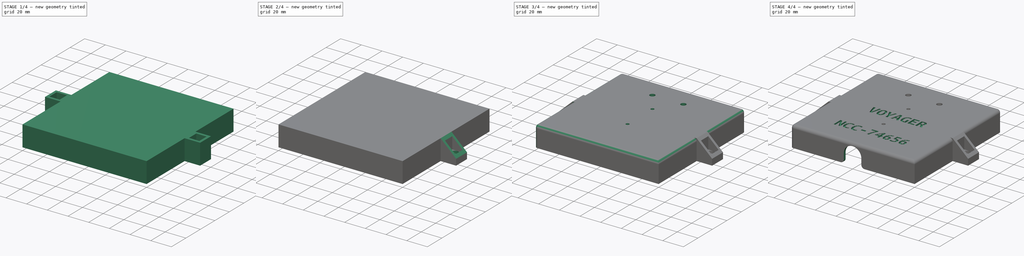
[diagram: build sequence overview — one tinted view per stage of 4, left to right]
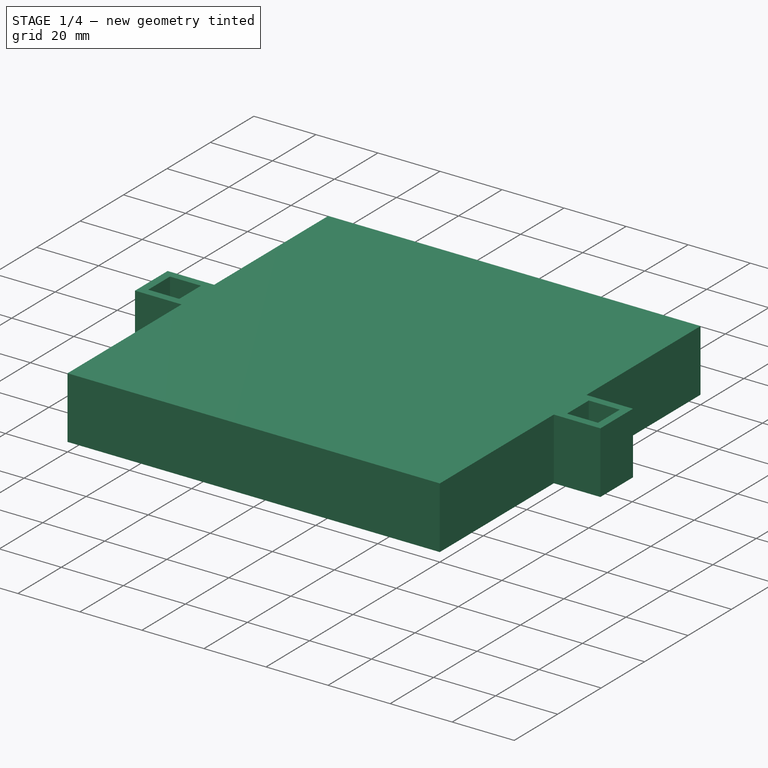
[diagram: stage 1 of 4 — iso view after this stage's code; geometry added in this stage tinted green]
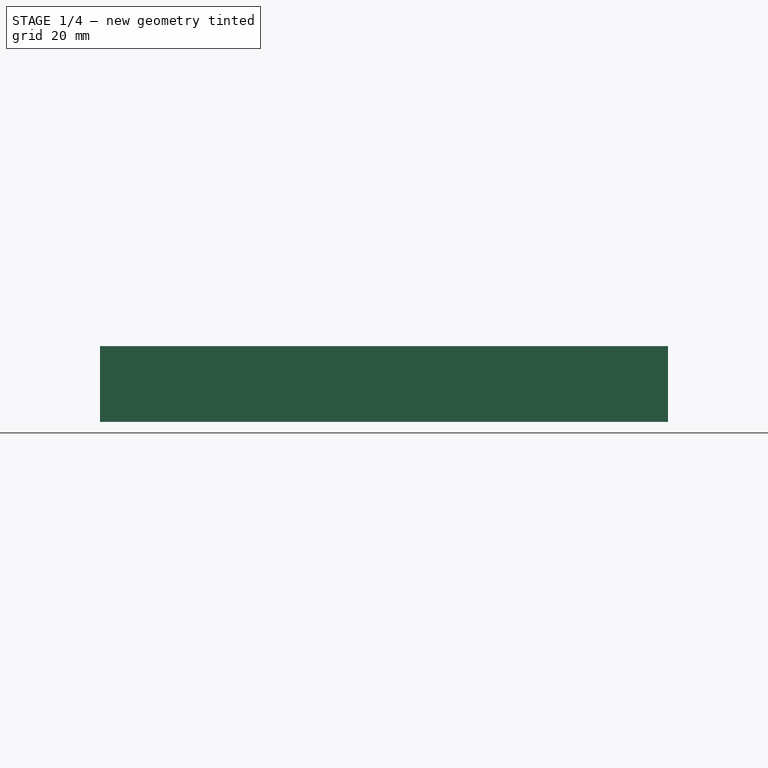
[diagram: stage 1 of 4 — front view after this stage's code; geometry added in this stage tinted green]
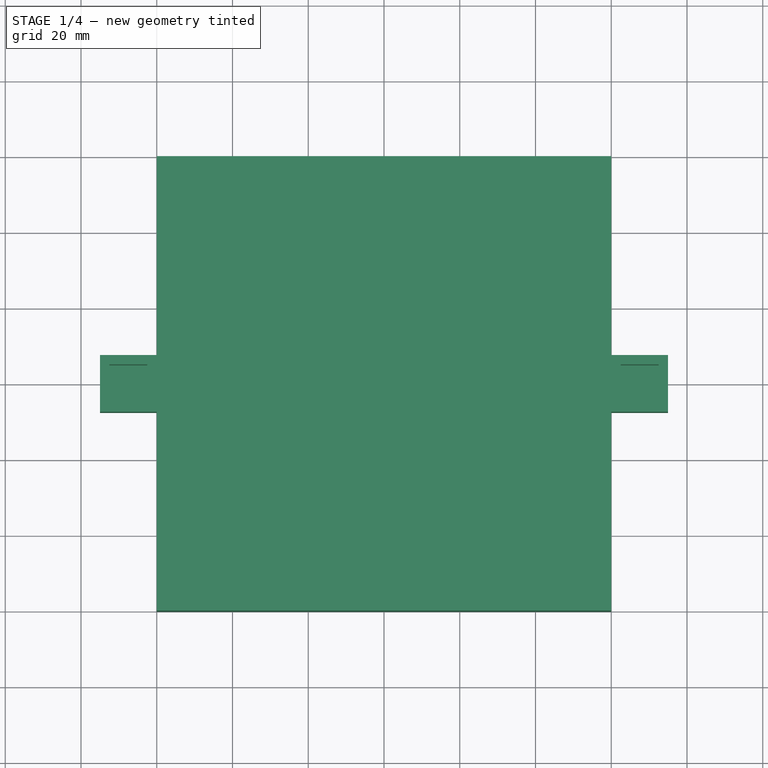
[diagram: stage 1 of 4 — top view after this stage's code; geometry added in this stage tinted green]
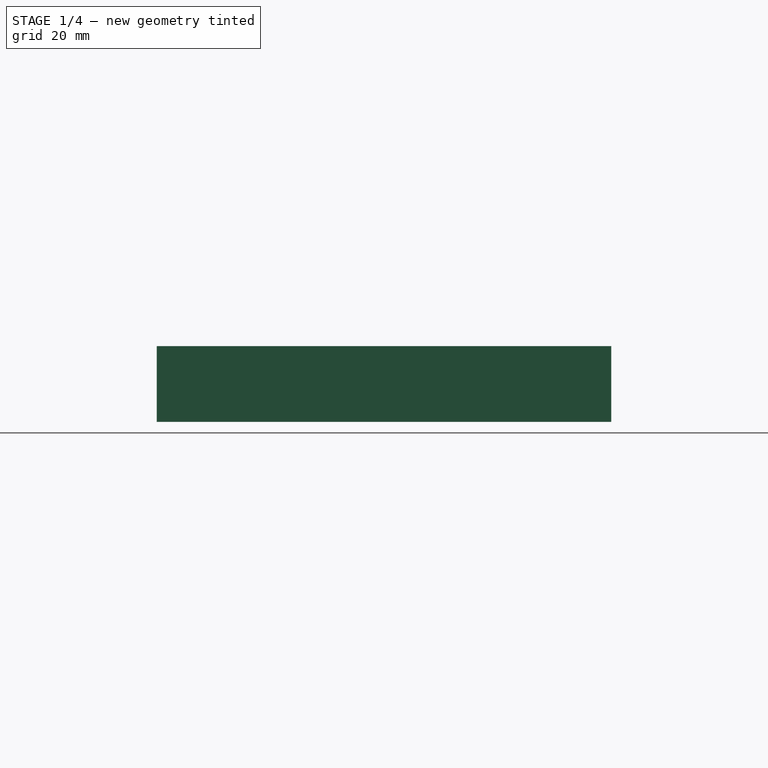
[diagram: stage 1 of 4 — right view after this stage's code; geometry added in this stage tinted green]
FCSTD DOCUMENT  (FreeCAD 0.21R33771 (Git))
Label: caixa-120-120-20
License: All rights reserved
LicenseURL: https://en.wikipedia.org/wiki/All_rights_reserved
objects: Sketcher::SketchObject×10, PartDesign::Pocket×9, PartDesign::Pad×3, PartDesign::Fillet×2, Part::Part2DObjectPython×2, PartDesign::Line×1, PartDesign::Body×1
note: 42 computed .brp shape members not serialized (recipe doc carries the construction recipe); baked Part::Feature solids carry a one-line shape summary decoded from their .brp

FEATURE [Sketcher::SketchObject] Sketch
  FullyConstrained = true
  MapMode = 5
  Support = -> [XY_Plane]
  sketch-geometry (4):
    g0: LineSegment StartX=-60 StartY=60 StartZ=0 EndX=60 EndY=60 EndZ=0
    g1: LineSegment StartX=60 StartY=60 StartZ=0 EndX=60 EndY=-60 EndZ=0
    g2: LineSegment StartX=60 StartY=-60 StartZ=0 EndX=-60 EndY=-60 EndZ=0
    g3: LineSegment StartX=-60 StartY=-60 StartZ=0 EndX=-60 EndY=60 EndZ=0
  constraints (10):
    c: Coincident(g0,g1)
    c: Coincident(g1,g2)
    c: Coincident(g2,g3)
    c: Coincident(g3,g0)
    c: Horizontal(g2)
    c: Vertical(g1)
    c: Symmetric(g0,g0,g-2)
    c: Symmetric(g2,g0,g-1)
    c: DistanceY(g1,g1) = 120
    c: DistanceX(g0,g0) = 120
FEATURE [PartDesign::Pad] Pad
  Direction = (0,0,1)
  Length = 20
  Length2 = 10
  Profile = -> Sketch
  ReferenceAxis = -> Sketch [N_Axis]
  Type = 0
FEATURE [Sketcher::SketchObject] Sketch001
  ExternalGeometry = -> [Pad]
  FullyConstrained = true
  MapMode = 5
  Placement = pos=(0,0,0) rot=(1,0,0;3.14159rad)
  Support = -> [Pad]
  sketch-geometry (4):
    g0: LineSegment StartX=-57.5 StartY=57.5 StartZ=0 EndX=57.5 EndY=57.5 EndZ=0
    g1: LineSegment StartX=57.5 StartY=57.5 StartZ=0 EndX=57.5 EndY=-57.5 EndZ=0
    g2: LineSegment StartX=57.5 StartY=-57.5 StartZ=0 EndX=-57.5 EndY=-57.5 EndZ=0
    g3: LineSegment StartX=-57.5 StartY=-57.5 StartZ=0 EndX=-57.5 EndY=57.5 EndZ=0
  constraints (10):
    c: Coincident(g0,g1)
    c: Coincident(g1,g2)
    c: Coincident(g2,g3)
    c: Coincident(g3,g0)
    c: Horizontal(g2)
    c: Vertical(g1)
    c: Symmetric(g0,g0,g-2)
    c: Symmetric(g2,g0,g-1)
    c: DistanceY(g0,g-4) = 2.5
    c: DistanceX(g-4,g2) = 2.5
FEATURE [PartDesign::Pocket] Pocket
  BaseFeature = -> Pad
  Direction = (0,0,1)
  Length = 17
  Length2 = 5
  Profile = -> Sketch001
  ReferenceAxis = -> Sketch001 [N_Axis]
  Type = 0
FEATURE [Sketcher::SketchObject] Sketch002
  ExternalGeometry = -> [Pocket]
  FullyConstrained = true
  MapMode = 5
  Placement = pos=(0,0,20) rot=(0,0,1;0rad)
  Support = -> [Pocket]
  sketch-geometry (22):
    g0: LineSegment StartX=-75 StartY=7.5 StartZ=0 EndX=-60 EndY=7.5 EndZ=0
    g1: LineSegment StartX=-60 StartY=7.5 StartZ=0 EndX=-60 EndY=-7.5 EndZ=0
    g2: LineSegment StartX=-60 StartY=-7.5 StartZ=0 EndX=-75 EndY=-7.5 EndZ=0
    g3: LineSegment StartX=-75 StartY=-7.5 StartZ=0 EndX=-75 EndY=7.5 EndZ=0
    g4: LineSegment StartX=60 StartY=7.5 StartZ=0 EndX=75 EndY=7.5 EndZ=0
    g5: LineSegment StartX=75 StartY=7.5 StartZ=0 EndX=75 EndY=-7.5 EndZ=0
    g6: LineSegment StartX=75 StartY=-7.5 StartZ=0 EndX=60 EndY=-7.5 EndZ=0
    g7: LineSegment StartX=60 StartY=-7.5 StartZ=0 EndX=60 EndY=7.5 EndZ=0
    g8: Circle CenterX=-67.5 CenterY=0 CenterZ=0 NormalX=0 NormalY=0 NormalZ=1 AngleXU=0 Radius=7.5
    g9: Circle CenterX=-67.5 CenterY=0 CenterZ=0 NormalX=0 NormalY=0 NormalZ=1 AngleXU=0 Radius=5
    g10: GeomPoint X=-75 Y=0 Z=0
    g11: GeomPoint X=-72.5 Y=0 Z=0
    g12: LineSegment StartX=-72.5 StartY=5 StartZ=0 EndX=-62.5 EndY=5 EndZ=0
    g13: LineSegment StartX=-62.5 StartY=5 StartZ=0 EndX=-62.5 EndY=-5 EndZ=0
    g14: LineSegment StartX=-62.5 StartY=-5 StartZ=0 EndX=-72.5 EndY=-5 EndZ=0
    g15: LineSegment StartX=-72.5 StartY=-5 StartZ=0 EndX=-72.5 EndY=5 EndZ=0
    g16: LineSegment StartX=62.5 StartY=5 StartZ=0 EndX=72.5 EndY=5 EndZ=0
    g17: LineSegment StartX=72.5 StartY=5 StartZ=0 EndX=72.5 EndY=-5 EndZ=0
    g18: LineSegment StartX=72.5 StartY=-5 StartZ=0 EndX=62.5 EndY=-5 EndZ=0
    g19: LineSegment StartX=62.5 StartY=-5 StartZ=0 EndX=62.5 EndY=5 EndZ=0
    g20: Circle CenterX=67.5 CenterY=0 CenterZ=0 NormalX=0 NormalY=0 NormalZ=1 AngleXU=0 Radius=5
    g21: Circle CenterX=67.5 CenterY=0 CenterZ=0 NormalX=0 NormalY=0 NormalZ=1 AngleXU=0 Radius=7.5
  constraints (60):
    c: Coincident(g0,g1)
    c: Coincident(g1,g2)
    c: Coincident(g2,g3)
    c: Coincident(g3,g0)
    c: Horizontal(g0)
    c: Horizontal(g2)
    c: Vertical(g3)
    c: Coincident(g4,g5)
    c: Coincident(g5,g6)
    c: Coincident(g6,g7)
    c: Coincident(g7,g4)
    c: Horizontal(g4)
    c: Horizontal(g6)
    c: Vertical(g5)
    c: Symmetric(g4,g6,g-1)
    c: Symmetric(g1,g0,g-1)
    c: Equal(g4,g0)
    c: Equal(g3,g7)
    c: PointOnObject(g0,g-3)
    c: PointOnObject(g8,g-1)
    c: Coincident(g9,g8)
    c: Tangent(g8,g0)
    c: Tangent(g8,g3)
    c: Tangent(g8,g1)
    c: Diameter(g9) = 10
    c: PointOnObject(g11,g9)
    c: PointOnObject(g11,g-1)
    c: PointOnObject(g10,g3)
    c: PointOnObject(g10,g-1)
    c: DistanceX(g10,g11) = 2.5
    c: PointOnObject(g4,g-4)
    c: Coincident(g12,g13)
    c: Coincident(g13,g14)
    c: Coincident(g14,g15)
    c: Coincident(g15,g12)
    c: Horizontal(g12)
    c: Horizontal(g14)
    c: Vertical(g13)
    c: Vertical(g15)
    c: Tangent(g14,g9)
    c: Tangent(g9,g13)
    c: Tangent(g9,g12)
    c: Tangent(g9,g15)
    c: Coincident(g16,g17)
    c: Coincident(g17,g18)
    c: Coincident(g18,g19)
    c: Coincident(g19,g16)
    c: Horizontal(g16)
    c: Horizontal(g18)
    c: Vertical(g17)
    c: Vertical(g19)
    c: PointOnObject(g20,g-1)
    c: Equal(g20,g9)
    c: Coincident(g21,g20)
    c: Tangent(g20,g16)
    c: Tangent(g20,g19)
    c: Tangent(g18,g20)
    c: Tangent(g17,g20)
    c: Tangent(g21,g7)
    c: Equal(g8,g21)
FEATURE [PartDesign::Pad] Pad001
  BaseFeature = -> Pocket
  Direction = (0,0,1)
  Length = 10
  Length2 = 10
  Profile = -> Sketch002
  ReferenceAxis = -> Sketch002 [N_Axis]
  Type = 3
  UpToFace = -> Pocket [Face4]
FEATURE [Sketcher::SketchObject] Sketch003
  ExternalGeometry = -> [Pad001]
  FullyConstrained = true
  MapMode = 5
  Placement = pos=(0,0,0) rot=(1,0,0;3.14159rad)
  Support = -> [Pad001]
  sketch-geometry (8):
    g0: LineSegment StartX=-75 StartY=7.5 StartZ=0 EndX=-60 EndY=7.5 EndZ=0
    g1: LineSegment StartX=-60 StartY=7.5 StartZ=0 EndX=-60 EndY=-7.5 EndZ=0
    g2: LineSegment StartX=-60 StartY=-7.5 StartZ=0 EndX=-75 EndY=-7.5 EndZ=0
    g3: LineSegment StartX=-75 StartY=-7.5 StartZ=0 EndX=-75 EndY=7.5 EndZ=0
    g4: LineSegment StartX=60 StartY=7.5 StartZ=0 EndX=75 EndY=7.5 EndZ=0
    g5: LineSegment StartX=75 StartY=7.5 StartZ=0 EndX=75 EndY=-7.5 EndZ=0
    g6: LineSegment StartX=75 StartY=-7.5 StartZ=0 EndX=60 EndY=-7.5 EndZ=0
    g7: LineSegment StartX=60 StartY=-7.5 StartZ=0 EndX=60 EndY=7.5 EndZ=0
  constraints (20):
    c: Coincident(g0,g1)
    c: Coincident(g1,g2)
    c: Coincident(g2,g3)
    c: Coincident(g3,g0)
    c: Horizontal(g0)
    c: Horizontal(g2)
    c: Vertical(g1)
    c: Vertical(g3)
    c: Coincident(g0,g-3)
    c: Coincident(g1,g-4)
    c: Coincident(g4,g5)
    c: Coincident(g5,g6)
    c: Coincident(g6,g7)
    c: Coincident(g7,g4)
    c: Horizontal(g4)
    c: Horizontal(g6)
    c: Vertical(g5)
    c: Vertical(g7)
    c: Coincident(g4,g-5)
    c: Coincident(g5,g-6)
FEATURE [PartDesign::Pad] Pad002
  BaseFeature = -> Pad001
  Direction = (0,0,-1)
  Length = 6
  Length2 = 10
  Profile = -> Sketch003
  ReferenceAxis = -> Sketch003 [N_Axis]
  Reversed = true
  Type = 0
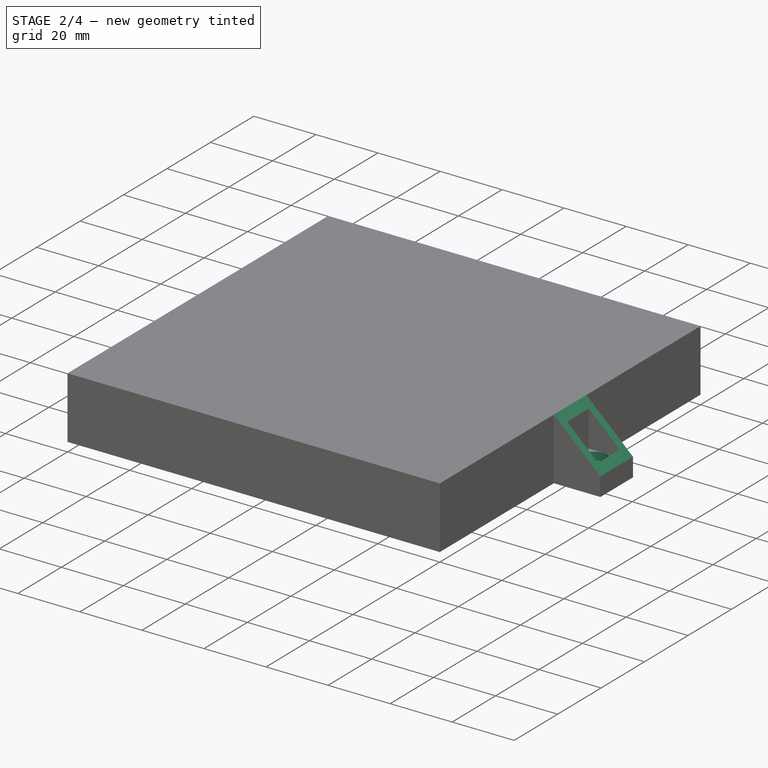
[diagram: stage 2 of 4 — iso view after this stage's code; geometry added in this stage tinted green]
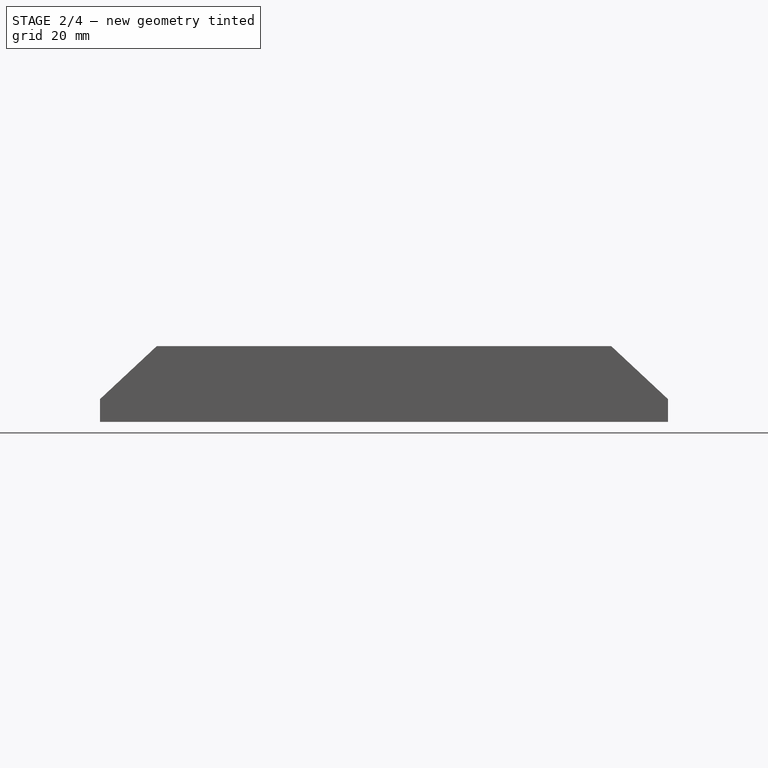
[diagram: stage 2 of 4 — front view after this stage's code; geometry added in this stage tinted green]
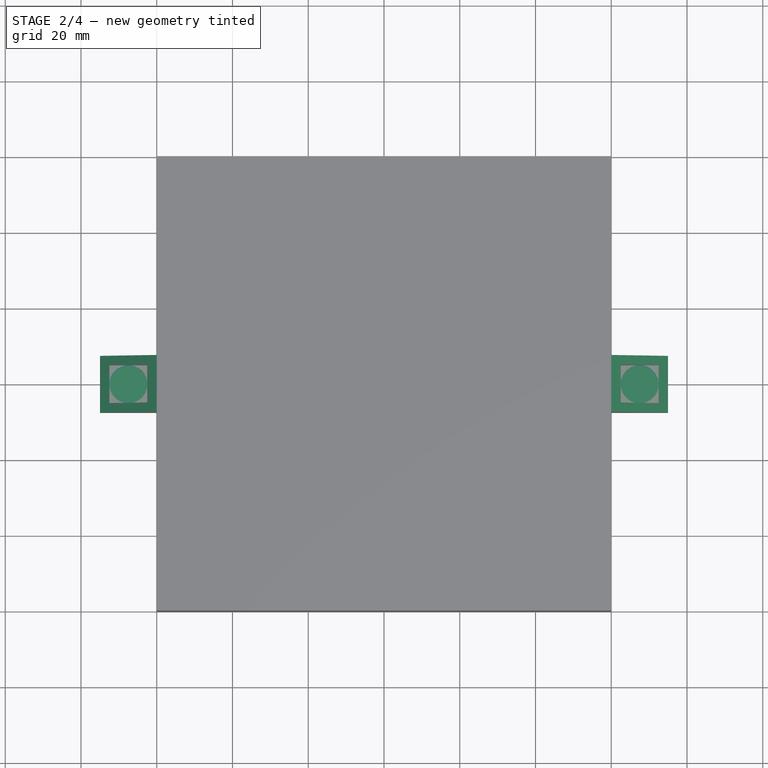
[diagram: stage 2 of 4 — top view after this stage's code; geometry added in this stage tinted green]
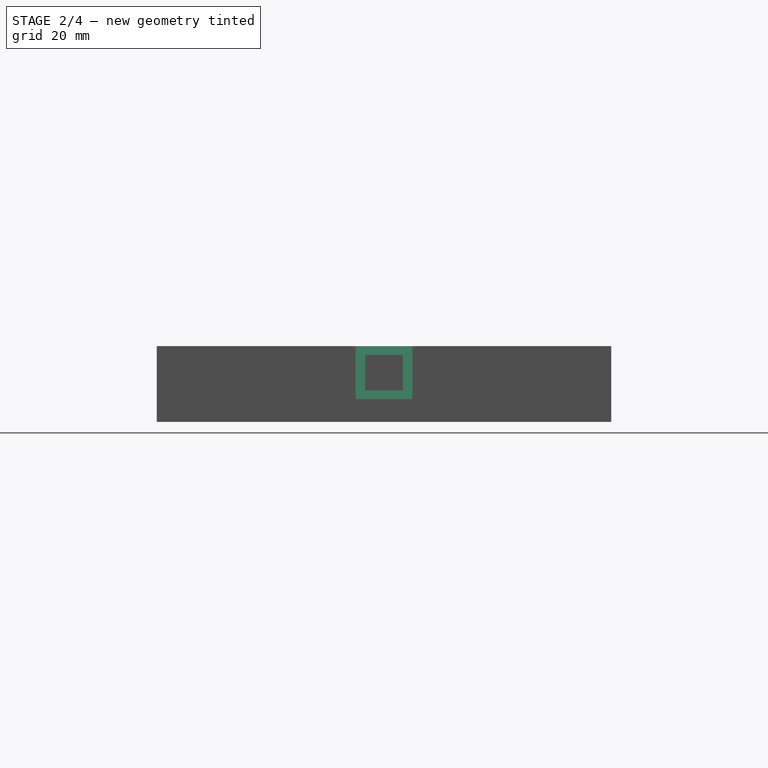
[diagram: stage 2 of 4 — right view after this stage's code; geometry added in this stage tinted green]
FEATURE [Sketcher::SketchObject] Sketch004
  ExternalGeometry = -> [Pad002]
  FullyConstrained = true
  MapMode = 5
  Placement = pos=(0,60,0) rot=(0,0.707107,0.707107;3.14159rad)
  Support = -> [Pad002]
  sketch-geometry (6):
    g0: LineSegment StartX=-75 StartY=6 StartZ=0 EndX=-60 EndY=20 EndZ=0
    g1: LineSegment StartX=-60 StartY=20 StartZ=0 EndX=-75 EndY=20 EndZ=0
    g2: LineSegment StartX=-75 StartY=20 StartZ=0 EndX=-75 EndY=6 EndZ=0
    g3: LineSegment StartX=75 StartY=20 StartZ=0 EndX=60 EndY=20 EndZ=0
    g4: LineSegment StartX=60 StartY=20 StartZ=0 EndX=75 EndY=6 EndZ=0
    g5: LineSegment StartX=75 StartY=6 StartZ=0 EndX=75 EndY=20 EndZ=0
  constraints (12):
    c: Coincident(g0,g1)
    c: Coincident(g1,g2)
    c: Coincident(g2,g0)
    c: Coincident(g3,g4)
    c: Coincident(g4,g5)
    c: Coincident(g5,g3)
    c: Coincident(g-6,g3)
    c: Coincident(g3,g-5)
    c: Coincident(g4,g-6)
    c: Coincident(g1,g-4)
    c: Coincident(g0,g-3)
    c: Coincident(g0,g-4)
FEATURE [PartDesign::Pocket] Pocket001
  BaseFeature = -> Pad002
  Direction = (0,-1,2e-16)
  Length = 5
  Length2 = 5
  Profile = -> Sketch004
  ReferenceAxis = -> Sketch004 [N_Axis]
  Type = 1
FEATURE [Sketcher::SketchObject] Sketch005
  ExternalGeometry = -> [Pocket001]
  FullyConstrained = true
  MapMode = 5
  Placement = pos=(0,0,0) rot=(1,0,0;3.14159rad)
  Support = -> [Pocket001]
  sketch-geometry (2):
    g0: Circle CenterX=67.5 CenterY=0 CenterZ=0 NormalX=0 NormalY=0 NormalZ=1 AngleXU=0 Radius=5
    g1: Circle CenterX=-67.5 CenterY=0 CenterZ=0 NormalX=0 NormalY=0 NormalZ=1 AngleXU=0 Radius=5
  constraints (6):
    c: PointOnObject(g0,g-1)
    c: PointOnObject(g1,g-1)
    c: Tangent(g1,g-4)
    c: Tangent(g1,g-3)
    c: Tangent(g0,g-5)
    c: Tangent(g-6,g0)
FEATURE [PartDesign::Pocket] Pocket002
  BaseFeature = -> Pocket001
  Direction = (0,0,1)
  Length = 2.5
  Length2 = 5
  Profile = -> Sketch005
  ReferenceAxis = -> Sketch005 [N_Axis]
  Type = 0
FEATURE [Sketcher::SketchObject] Sketch006
  ExternalGeometry = -> [Pocket002]
  FullyConstrained = true
  MapMode = 5
  Placement = pos=(0,0,6) rot=(0,0,1;0rad)
  Support = -> [Pocket002]
  sketch-geometry (2):
    g0: Circle CenterX=-67.5 CenterY=0 CenterZ=0 NormalX=0 NormalY=0 NormalZ=1 AngleXU=0 Radius=5
    g1: Circle CenterX=67.5 CenterY=0 CenterZ=0 NormalX=0 NormalY=0 NormalZ=1 AngleXU=0 Radius=5
  constraints (6):
    c: PointOnObject(g0,g-1)
    c: PointOnObject(g1,g-1)
    c: Tangent(g1,g-6)
    c: Tangent(g1,g-5)
    c: Tangent(g0,g-4)
    c: Tangent(g0,g-3)
FEATURE [PartDesign::Pocket] Pocket003
  BaseFeature = -> Pocket002
  Direction = (0,0,-1)
  Length = 2.5
  Length2 = 5
  Profile = -> Sketch006
  ReferenceAxis = -> Sketch006 [N_Axis]
  Type = 0
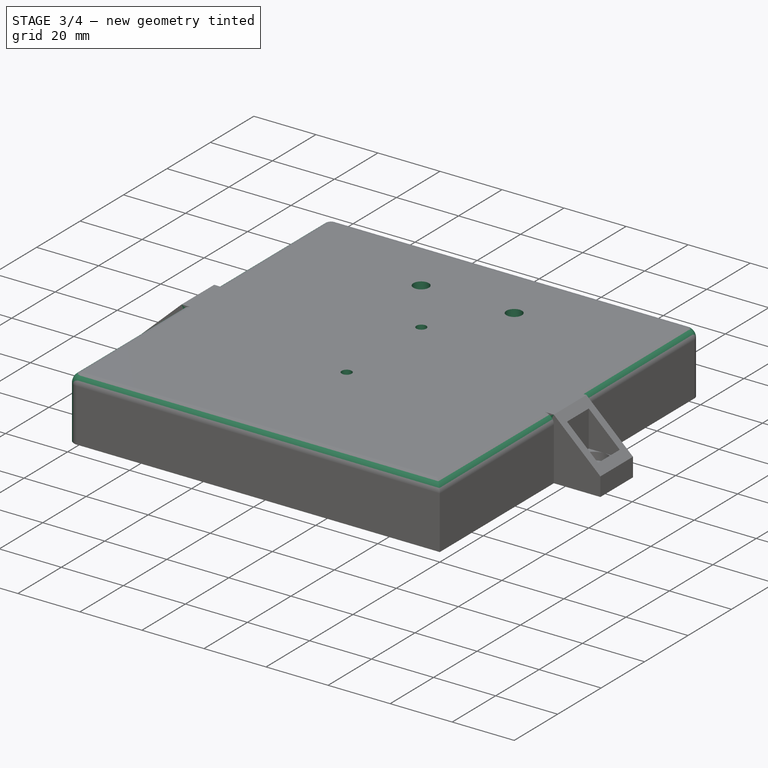
[diagram: stage 3 of 4 — iso view after this stage's code; geometry added in this stage tinted green]
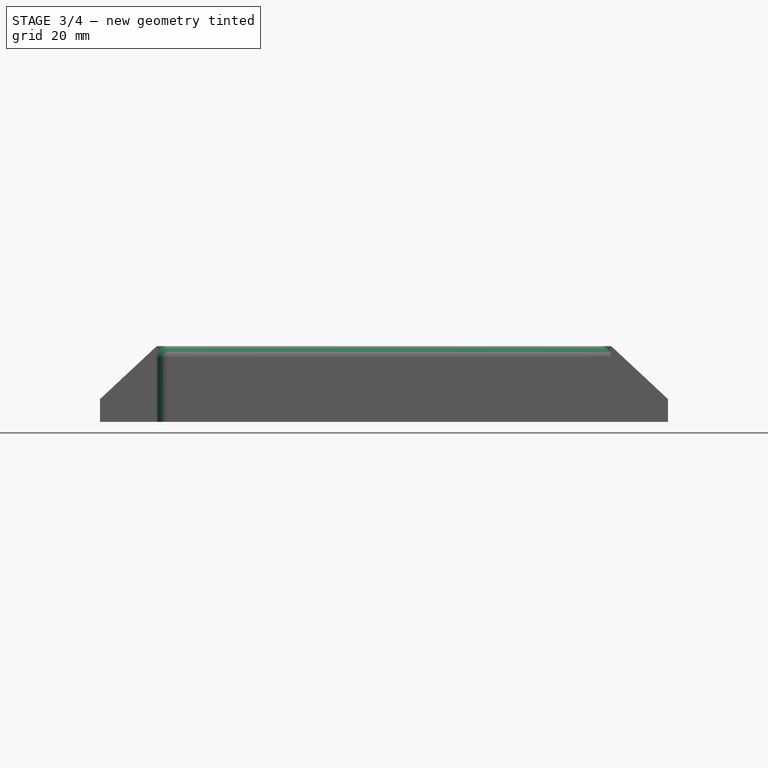
[diagram: stage 3 of 4 — front view after this stage's code; geometry added in this stage tinted green]
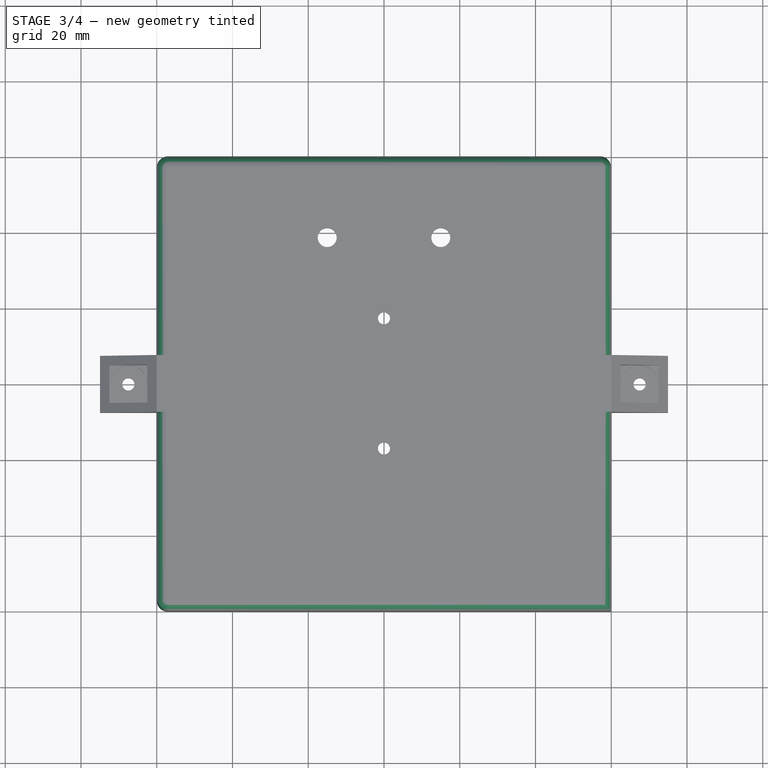
[diagram: stage 3 of 4 — top view after this stage's code; geometry added in this stage tinted green]
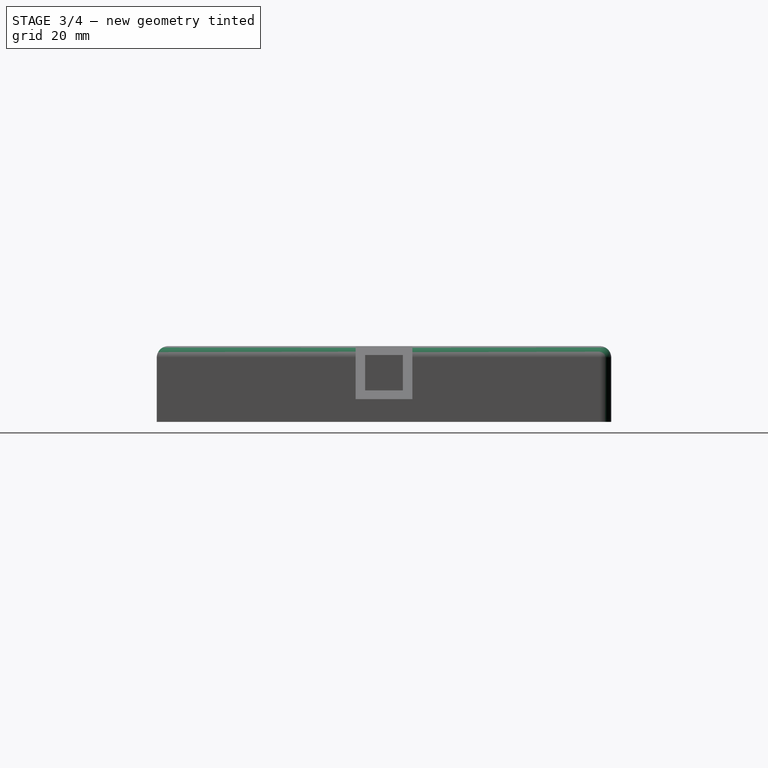
[diagram: stage 3 of 4 — right view after this stage's code; geometry added in this stage tinted green]
FEATURE [Sketcher::SketchObject] Sketch007
  ExternalGeometry = -> [Pocket003]
  FullyConstrained = true
  MapMode = 5
  Placement = pos=(0,0,3.5) rot=(0,0,1;0rad)
  Support = -> [Pocket003]
  sketch-geometry (2):
    g0: Circle CenterX=-67.5 CenterY=0 CenterZ=0 NormalX=0 NormalY=0 NormalZ=1 AngleXU=0 Radius=1.6
    g1: Circle CenterX=67.5 CenterY=0 CenterZ=0 NormalX=0 NormalY=0 NormalZ=1 AngleXU=0 Radius=1.6
  constraints (4):
    c: Coincident(g0,g-3)
    c: Coincident(g1,g-4)
    c: Equal(g0,g1)
    c: Diameter(g1) = 3.2
FEATURE [PartDesign::Pocket] Pocket004
  BaseFeature = -> Pocket003
  Direction = (0,0,-1)
  Length = 5
  Length2 = 5
  Profile = -> Sketch007
  ReferenceAxis = -> Sketch007 [N_Axis]
  Type = 1
FEATURE [PartDesign::Fillet] Fillet
  Base = -> Pocket004 [Edge4,Edge24,Edge23,Edge12,Edge6,Edge25,Edge1,Edge37,Edge2,Edge64,Edge67,Edge65,Edge66,Edge68,Edge61,Edge63,Edge62]
  BaseFeature = -> Pocket004
  Radius = 3
  SupportTransform = false
  UseAllEdges = false
FEATURE [Sketcher::SketchObject] Sketch008
  FullyConstrained = true
  MapMode = 5
  Placement = pos=(0,0,17) rot=(1,0,0;3.14159rad)
  Support = -> [Fillet]
  sketch-geometry (8):
    g0: Circle CenterX=0 CenterY=17.186 CenterZ=0 NormalX=0 NormalY=0 NormalZ=1 AngleXU=0 Radius=1.6
    g1: Circle CenterX=0 CenterY=-17.186 CenterZ=0 NormalX=0 NormalY=0 NormalZ=1 AngleXU=0 Radius=1.6
    g2: LineSegment StartX=-15 StartY=28.5 StartZ=0 EndX=15 EndY=28.5 EndZ=0
    g3: LineSegment StartX=15 StartY=28.5 StartZ=0 EndX=15 EndY=-28.5 EndZ=0
    g4: LineSegment StartX=15 StartY=-28.5 StartZ=0 EndX=-15 EndY=-28.5 EndZ=0
    g5: LineSegment StartX=-15 StartY=-28.5 StartZ=0 EndX=-15 EndY=28.5 EndZ=0
    g6: Circle CenterX=-15 CenterY=-38.5 CenterZ=0 NormalX=0 NormalY=0 NormalZ=1 AngleXU=0 Radius=2.5
    g7: Circle CenterX=15 CenterY=-38.5 CenterZ=0 NormalX=0 NormalY=0 NormalZ=1 AngleXU=0 Radius=2.5
  constraints (20):
    c: Equal(g1,g0)
    c: Diameter(g1) = 3.2
    c: Coincident(g2,g3)
    c: Coincident(g3,g4)
    c: Coincident(g4,g5)
    c: Coincident(g5,g2)
    c: Horizontal(g4)
    c: Vertical(g3)
    c: Symmetric(g2,g2,g-2)
    c: Symmetric(g4,g2,g-1)
    c: DistanceY(g5,g5) = 57
    c: DistanceX(g2,g2) = 30
    c: Symmetric(g1,g0,g-1)
    c: PointOnObject(g0,g-2)
    c: DistanceY(g1,g0) = 34.372
    c: Symmetric(g7,g6,g-2)
    c: Equal(g7,g6)
    c: Diameter(g7) = 5
    c: Vertical(g4,g6)
    c: DistanceY(g6,g4) = 10
FEATURE [PartDesign::Pocket] Pocket005
  BaseFeature = -> Fillet
  Direction = (0,0,1)
  Length = 5
  Length2 = 5
  Profile = -> Sketch008
  ReferenceAxis = -> Sketch008 [N_Axis]
  Type = 1
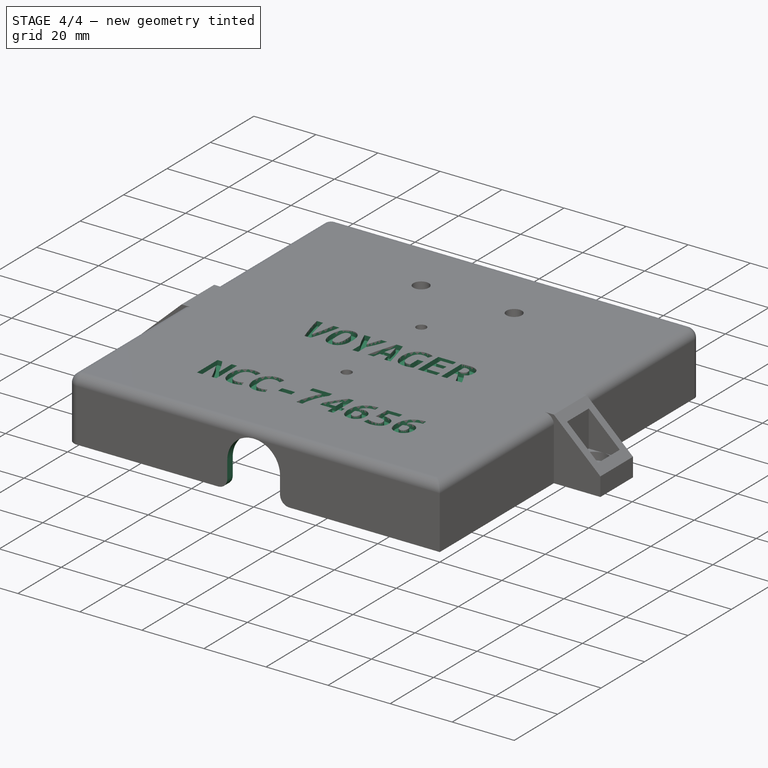
[diagram: stage 4 of 4 — iso view after this stage's code; geometry added in this stage tinted green]
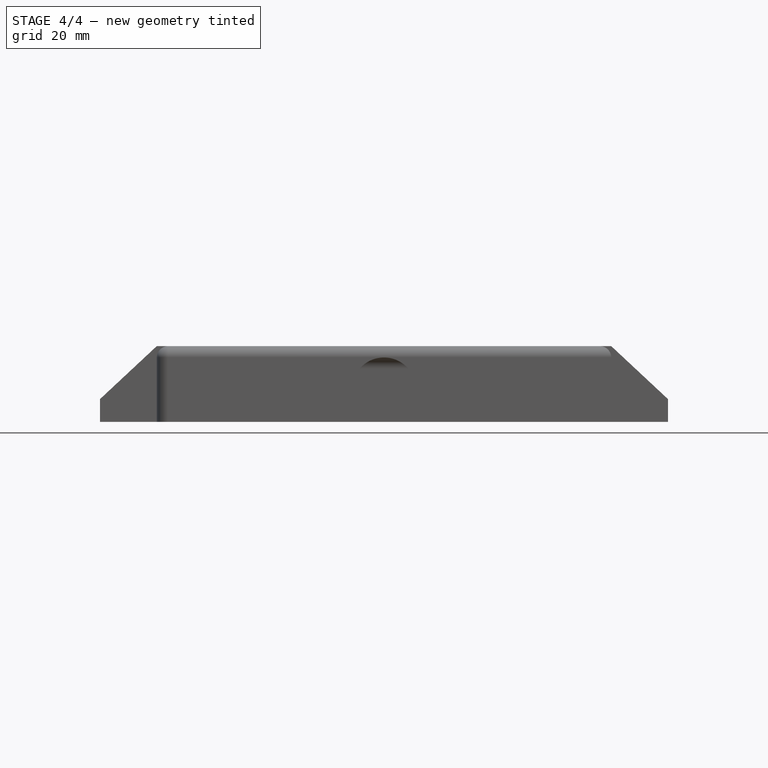
[diagram: stage 4 of 4 — front view after this stage's code; geometry added in this stage tinted green]
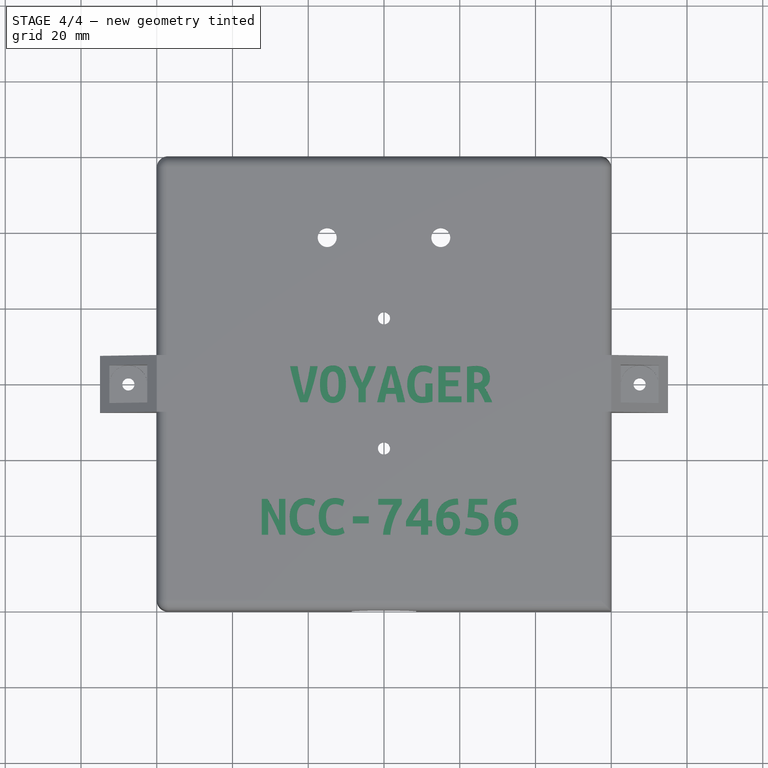
[diagram: stage 4 of 4 — top view after this stage's code; geometry added in this stage tinted green]
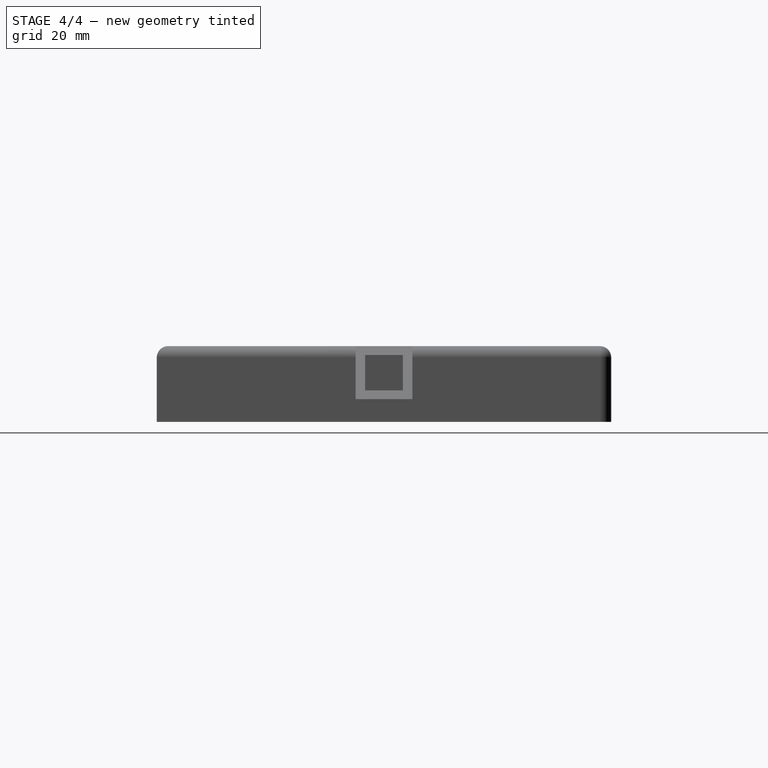
[diagram: stage 4 of 4 — right view after this stage's code; geometry added in this stage tinted green]
FEATURE [Sketcher::SketchObject] Sketch009
  ExternalGeometry = -> [Pocket005]
  FullyConstrained = true
  MapMode = 5
  Placement = pos=(0,-60,0) rot=(1,0,0;1.5708rad)
  Support = -> [Pocket005]
  sketch-geometry (4):
    g0: ArcOfCircle CenterX=0 CenterY=8.5 CenterZ=0 NormalX=0 NormalY=0 NormalZ=1 AngleXU=0 Radius=8.5 StartAngle=-3.6e-15 EndAngle=3.14159
    g1: ArcOfCircle CenterX=0 CenterY=-8.5 CenterZ=0 NormalX=0 NormalY=0 NormalZ=1 AngleXU=0 Radius=8.5 StartAngle=3.14159 EndAngle=6.28319
    g2: LineSegment StartX=-8.5 StartY=8.5 StartZ=0 EndX=-8.5 EndY=-8.5 EndZ=0
    g3: LineSegment StartX=8.5 StartY=-8.5 StartZ=0 EndX=8.5 EndY=8.5 EndZ=0
  constraints (10):
    c: Tangent(g0,g2) = -1.5708
    c: Tangent(g2,g1) = -1.5708
    c: Tangent(g1,g3) = -1.5708
    c: Tangent(g3,g0) = -1.5708
    c: Equal(g0,g1)
    c: PointOnObject(g0,g-2)
    c: PointOnObject(g1,g-2)
    c: Tangent(g0,g-3)
    c: Tangent(g1,g-1)
    c: DistanceX(g0,g0) = 17
FEATURE [PartDesign::Pocket] Pocket006
  BaseFeature = -> Pocket005
  Direction = (0,1,-2e-16)
  Length = 20
  Length2 = 5
  Profile = -> Sketch009
  ReferenceAxis = -> Sketch009 [N_Axis]
  Type = 0
FEATURE [PartDesign::Fillet] Fillet001
  Base = -> Pocket006 [Edge20,Edge10]
  BaseFeature = -> Pocket006
  Radius = 3
  SupportTransform = false
  UseAllEdges = false
FEATURE [PartDesign::Line] DatumLine
  AttacherType = Attacher::AttachEngineLine
  Length = 20
  MapMode = 42
  Placement = pos=(-8.44178e-05,0.699124,3.90826) rot=(-1e-06,0.76684,0.641838;3.14159rad)
  ResizeMode = 0
  Support = -> [Fillet001]
FEATURE [Part::Part2DObjectPython] ShapeString  # Draft 2D object (typed FeaturePython)
  FontFile = <userpath>/workspace/trekking/pecas/caixas/Ubuntu_Mono/UbuntuMono-Bold.ttf
  MakeFace = true
  Placement = pos=(-25,-5,20) rot=(0,0,1;0rad)
  Size = 5
  String = VOYAGER
  Tracking = 0
FEATURE [Part::Part2DObjectPython] ShapeString001  # Draft 2D object (typed FeaturePython)
  FontFile = <userpath>/workspace/trekking/pecas/caixas/Ubuntu_Mono/UbuntuMono-Bold.ttf
  MakeFace = true
  Placement = pos=(-33,-40,20) rot=(0,0,1;0rad)
  Size = 5
  String = NCC-74656
  Tracking = 0
FEATURE [PartDesign::Pocket] Pocket007
  BaseFeature = -> Fillet001
  Direction = (0,0,-1)
  Length = 1.5
  Length2 = 5
  Profile = -> ShapeString
  ReferenceAxis = -> ShapeString [N_Axis]
  Type = 0
FEATURE [PartDesign::Pocket] Pocket008
  BaseFeature = -> Pocket007
  Direction = (0,0,-1)
  Length = 1.5
  Length2 = 5
  Profile = -> ShapeString001
  ReferenceAxis = -> ShapeString001 [N_Axis]
  Type = 0
FEATURE [PartDesign::Body] Body
  Group = -> [Sketch,Pad,Sketch001,Pocket,Sketch002,Pad001,Sketch003,Pad002,Sketch004,Pocket001,Sketch005,Pocket002,Sketch006,Pocket003,Sketch007,Pocket004,Fillet,Sketch008,Pocket005,Sketch009,Pocket006,Fillet001,DatumLine,ShapeString,ShapeString001,Pocket007,Pocket008]
  Origin = -> Origin
  Tip = -> Pocket008
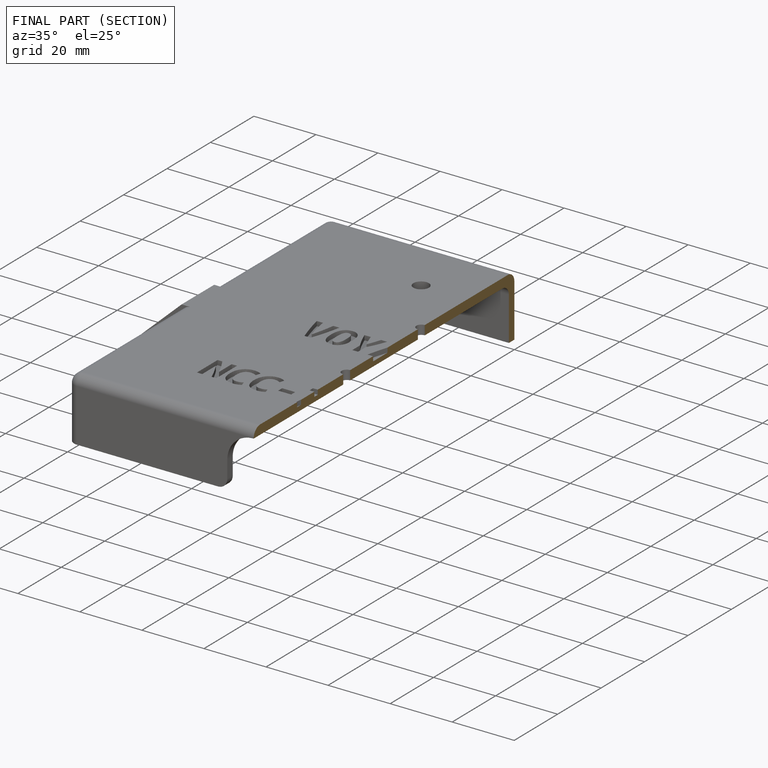
[diagram: finished part — half-section view (interior)]
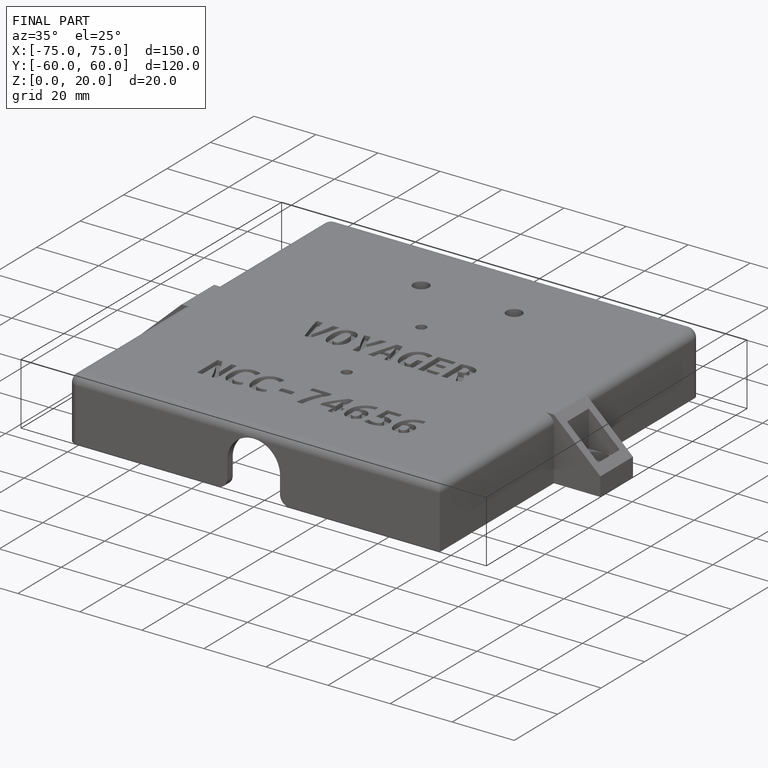
[diagram: finished part — iso view with bounding-box wireframe]
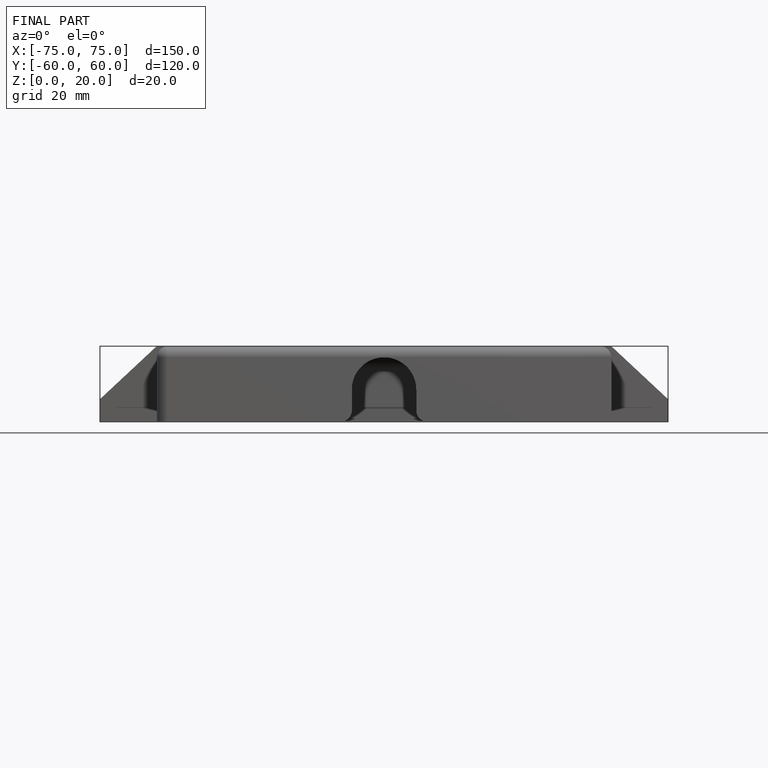
[diagram: finished part — front view with bounding-box wireframe]
